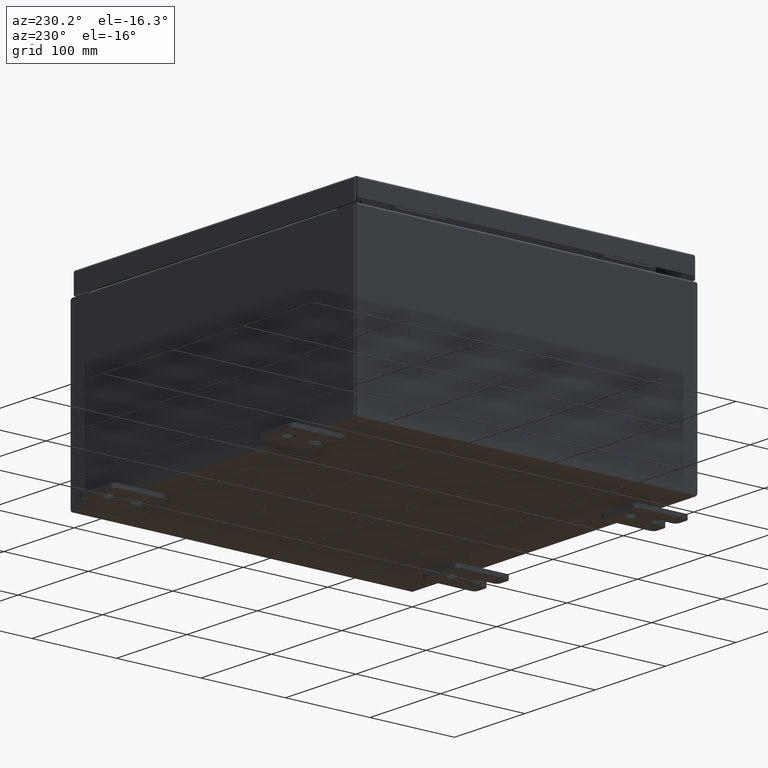
[diagram: clean part render]
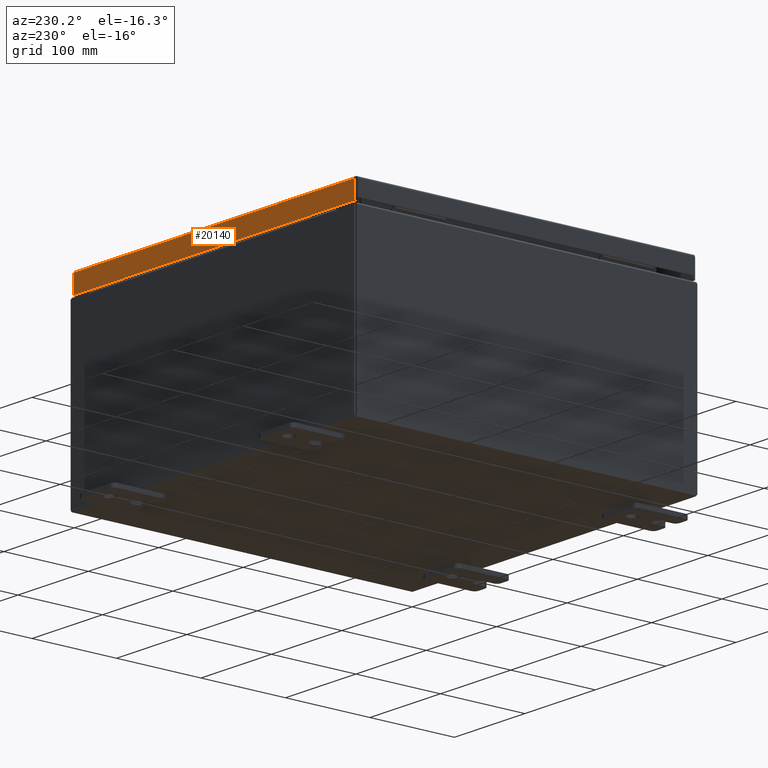
[diagram: same view with one face highlighted and labeled with its STEP entity id]
A machine part, auxiliary view. The second image highlights one B-rep face of the part: STEP entity #20140.
In plain terms, the highlighted planar face has unit normal (0, -1, -0).
Its self-contained STEP definition (entity closure, byte-faithful):
#1367 = LINE ( 'NONE', #2560, #48162 ) ;
#1596 = VECTOR ( 'NONE', #20403, 39.37007874015748100 ) ;
#2309 = LINE ( 'NONE', #47566, #60410 ) ;
#2552 = EDGE_CURVE ( 'NONE', #35910, #28181, #2309, .T. ) ;
#2560 = CARTESIAN_POINT ( 'NONE',  ( -7.848657864376269400, 7.937500000000000000, -0.07469999999999972500 ) ) ;
#4906 = DIRECTION ( 'NONE',  ( 0.0000000000000000000, 3.798629886902790100E-015, -1.000000000000000000 ) ) ;
#7053 = EDGE_LOOP ( 'NONE', ( #29588, #32303, #58259, #21309 ) ) ;
#7375 = DIRECTION ( 'NONE',  ( -0.0000000000000000000, 3.798629886902790100E-015, -1.000000000000000000 ) ) ;
#11693 = AXIS2_PLACEMENT_3D ( 'NONE', #34220, #58464, #29536 ) ;
#11987 = EDGE_CURVE ( 'NONE', #35910, #39014, #40124, .T. ) ;
#15026 = PLANE ( 'NONE',  #11693 ) ;
#16263 = VERTEX_POINT ( 'NONE', #23370 ) ;
#19104 = FACE_OUTER_BOUND ( 'NONE', #7053, .T. ) ;
#20074 = CARTESIAN_POINT ( 'NONE',  ( 7.848657864376269400, 7.937500000000003600, -0.9376999999999996400 ) ) ;
#20140 = ADVANCED_FACE ( 'NONE', ( #19104 ), #15026, .F. ) ;
#20403 = DIRECTION ( 'NONE',  ( -1.000000000000000000, -4.902651701673304100E-031, -1.880652595880180800E-045 ) ) ;
#21309 = ORIENTED_EDGE ( 'NONE', *, *, #44565, .F. ) ;
#23370 = CARTESIAN_POINT ( 'NONE',  ( -7.848657864376269400, 7.937500000000003600, -0.9377000000000018700 ) ) ;
#25151 = DIRECTION ( 'NONE',  ( 1.000000000000000000, -0.0000000000000000000, 1.290636847400439300E-016 ) ) ;
#28181 = VERTEX_POINT ( 'NONE', #20074 ) ;
#29536 = DIRECTION ( 'NONE',  ( 0.0000000000000000000, 3.798629886902790100E-015, -1.000000000000000000 ) ) ;
#29588 = ORIENTED_EDGE ( 'NONE', *, *, #11987, .F. ) ;
#32303 = ORIENTED_EDGE ( 'NONE', *, *, #2552, .T. ) ;
#34220 = CARTESIAN_POINT ( 'NONE',  ( -3.891479788203184800E-030, 7.937500000000000000, 3.041243838330248100E-014 ) ) ;
#34314 = EDGE_CURVE ( 'NONE', #16263, #28181, #44147, .T. ) ;
#34970 = CARTESIAN_POINT ( 'NONE',  ( -7.937500000000000000, 7.937500000000000000, -0.08769999999999997200 ) ) ;
#35910 = VERTEX_POINT ( 'NONE', #52098 ) ;
#39014 = VERTEX_POINT ( 'NONE', #60843 ) ;
#40124 = LINE ( 'NONE', #34970, #1596 ) ;
#42648 = VECTOR ( 'NONE', #25151, 39.37007874015748100 ) ;
#44147 = LINE ( 'NONE', #54095, #42648 ) ;
#44565 = EDGE_CURVE ( 'NONE', #39014, #16263, #1367, .T. ) ;
#47566 = CARTESIAN_POINT ( 'NONE',  ( 7.848657864376269400, 7.937500000000000000, 3.041243838330248100E-014 ) ) ;
#48162 = VECTOR ( 'NONE', #7375, 39.37007874015748100 ) ;
#52098 = CARTESIAN_POINT ( 'NONE',  ( 7.848657864376269400, 7.937500000000000000, -0.08769999999999997200 ) ) ;
#54095 = CARTESIAN_POINT ( 'NONE',  ( -7.937500000000000000, 7.937500000000003600, -0.9377000000000018700 ) ) ;
#58259 = ORIENTED_EDGE ( 'NONE', *, *, #34314, .F. ) ;
#58464 = DIRECTION ( 'NONE',  ( 4.902651701673304100E-031, -1.000000000000000000, -3.798629886902790100E-015 ) ) ;
#60410 = VECTOR ( 'NONE', #4906, 39.37007874015748100 ) ;
#60843 = CARTESIAN_POINT ( 'NONE',  ( -7.848657864376269400, 7.937500000000000000, -0.08769999999999997200 ) ) ;